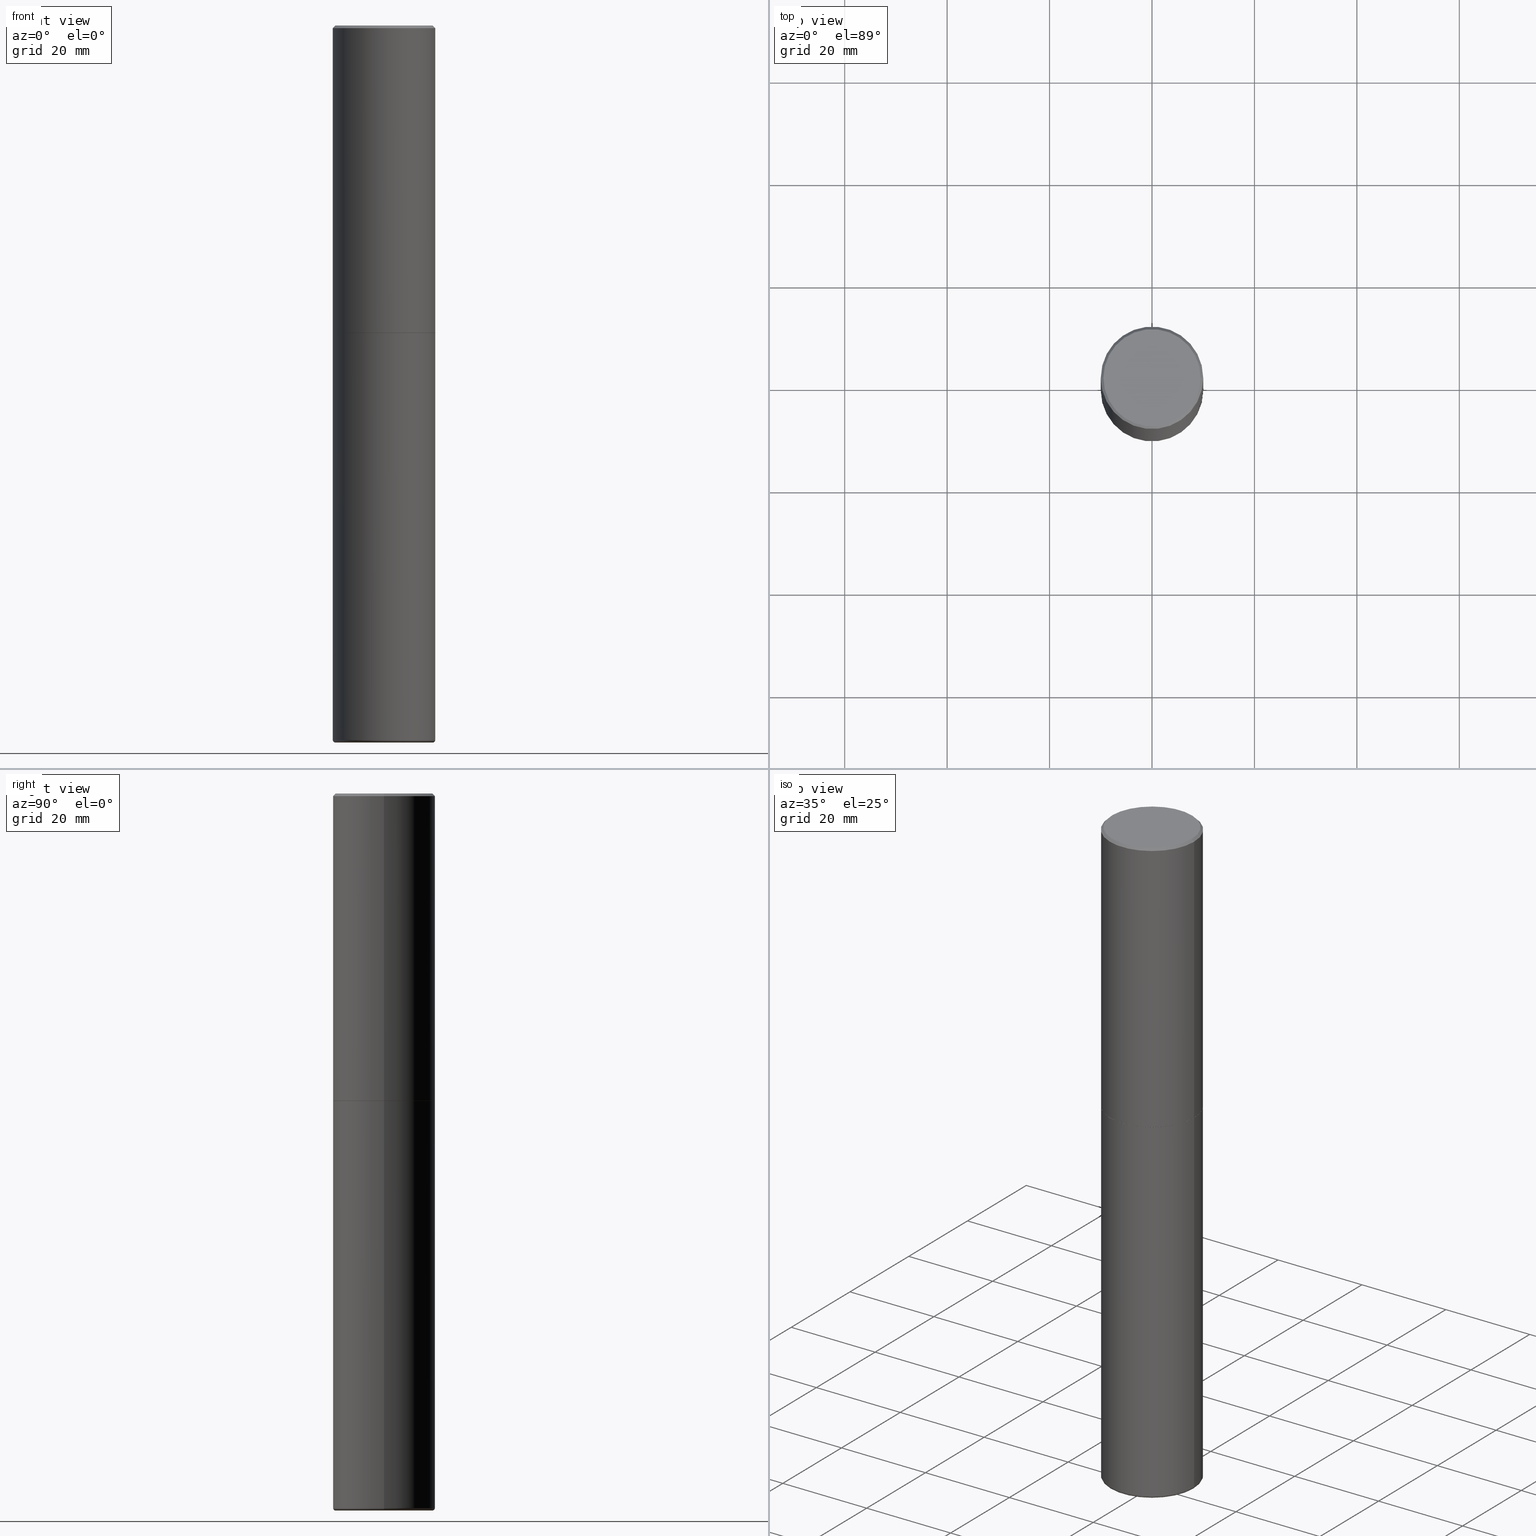
[diagram: canonical four-view strip — front | top / right | iso, engineering-drawing reading convention]
A machine part, canonical four-view strip (front | top / right | iso — engineering-drawing reading convention). The complete STEP part file that produces these views, byte-faithful:
ISO-10303-21;
HEADER;
FILE_DESCRIPTION (( 'STEP AP203' ),
    '1' );
FILE_NAME ('74542.STEP',
    '2024-03-06T15:26:11',
    ( '' ),
    ( '' ),
    'SwSTEP 2.0',
    'SolidWorks 2023',
    '' );
FILE_SCHEMA (( 'CONFIG_CONTROL_DESIGN' ));
ENDSEC;

DATA;
#1 = CARTESIAN_POINT ( 'NONE',  ( -0.3937000000000000499, 2.679362779428219918E-15, -0.02000000000000008715 ) ) ;
#2 = SHAPE_DEFINITION_REPRESENTATION ( #356, #47 ) ;
#3 = CIRCLE ( 'NONE', #96, 0.01969999999999985998 ) ;
#4 = DIRECTION ( 'NONE',  ( 0.7071067811866199593, -2.468850131083015945E-15, 0.7071067811864750752 ) ) ;
#5 = DIRECTION ( 'NONE',  ( -2.445468806185136877E-29, 3.491481338843145188E-15, 1.000000000000000000 ) ) ;
#6 = FACE_OUTER_BOUND ( 'NONE', #371, .T. ) ;
#7 = VECTOR ( 'NONE', #5, 39.37007874015748143 ) ;
#8 = VECTOR ( 'NONE', #125, 39.37007874015748143 ) ;
#9 = EDGE_CURVE ( 'NONE', #236, #379, #342, .T. ) ;
#10 = LINE ( 'NONE', #264, #26 ) ;
#11 = CARTESIAN_POINT ( 'NONE',  ( 5.776686413970529753E-29, -8.247577218615279626E-15, -2.362200000000000077 ) ) ;
#12 = ORIENTED_EDGE ( 'NONE', *, *, #267, .T. ) ;
#13 = CARTESIAN_POINT ( 'NONE',  ( -0.3937000000000000499, -1.091416418915034540E-14, -2.362200000000000077 ) ) ;
#14 = AXIS2_PLACEMENT_3D ( 'NONE', #82, #178, #246 ) ;
#15 = ADVANCED_FACE ( 'NONE', ( #135 ), #41, .T. ) ;
#16 = ORIENTED_EDGE ( 'NONE', *, *, #234, .F. ) ;
#17 = CARTESIAN_POINT ( 'NONE',  ( 1.343075923044938861E-28, -1.917556466106043760E-14, -5.492099999999999760 ) ) ;
#18 = ORIENTED_EDGE ( 'NONE', *, *, #60, .F. ) ;
#19 = APPROVAL_STATUS ( 'not_yet_approved' ) ;
#20 = CARTESIAN_POINT ( 'NONE',  ( 5.776686413970529753E-29, -8.247577218615279626E-15, -2.362200000000000077 ) ) ;
#21 = CARTESIAN_POINT ( 'NONE',  ( 5.776686413970529753E-29, -8.247577218615279626E-15, -2.362200000000000077 ) ) ;
#22 = EDGE_CURVE ( 'NONE', #44, #73, #285, .T. ) ;
#23 = COORDINATED_UNIVERSAL_TIME_OFFSET ( 5, 0, .BEHIND. ) ;
#24 = SECURITY_CLASSIFICATION_LEVEL ( 'unclassified' ) ;
#25 = APPROVAL ( #54, 'UNSPECIFIED' ) ;
#26 = VECTOR ( 'NONE', #105, 39.37007874015748143 ) ;
#27 = EDGE_CURVE ( 'NONE', #312, #174, #302, .T. ) ;
#28 = DIRECTION ( 'NONE',  ( -1.000000000000000000, 6.982962677686265922E-15, 0.000000000000000000 ) ) ;
#29 = AXIS2_PLACEMENT_3D ( 'NONE', #93, #368, #139 ) ;
#30 = DIRECTION ( 'NONE',  ( -2.445468806185136877E-29, 3.491481338843145188E-15, 1.000000000000000000 ) ) ;
#31 = PERSON ( 'UNSPECIFIED', 'UNSPECIFIED', 'UNSPECIFIED', ('UNSPECIFIED'), ('UNSPECIFIED'), ('UNSPECIFIED') ) ;
#32 = LENGTH_MEASURE_WITH_UNIT ( LENGTH_MEASURE( 0.02539999999999999897 ), #405 );
#33 = PERSON_AND_ORGANIZATION ( #31, #133 ) ;
#34 = CARTESIAN_POINT ( 'NONE',  ( 0.3937000000000001609, -2.749192406205084400E-15, 1.919750796630860732E-29 ) ) ;
#35 = ORIENTED_EDGE ( 'NONE', *, *, #335, .T. ) ;
#36 = DIMENSIONAL_EXPONENTS ( 1.000000000000000000, 0.000000000000000000, 0.000000000000000000, 0.000000000000000000, 0.000000000000000000, 0.000000000000000000, 0.000000000000000000 ) ;
#37 = EDGE_LOOP ( 'NONE', ( #186, #239, #235, #301 ) ) ;
#38 = DIRECTION ( 'NONE',  ( 0.7071067811865450192, -7.319954787623246579E-15, -0.7071067811865500152 ) ) ;
#39 = EDGE_CURVE ( 'NONE', #64, #79, #3, .T. ) ;
#40 = PLANE ( 'NONE',  #136 ) ;
#41 = TOROIDAL_SURFACE ( 'NONE', #127, 0.3739999999999999991, 0.01969999999999985998 ) ;
#42 = AXIS2_PLACEMENT_3D ( 'NONE', #204, #334, #398 ) ;
#43 = CALENDAR_DATE ( 2024, 6, 3 ) ;
#44 = VERTEX_POINT ( 'NONE', #165 ) ;
#45 = DIRECTION ( 'NONE',  ( 1.000000000000000000, -6.982962677686269866E-15, 0.000000000000000000 ) ) ;
#46 = VERTEX_POINT ( 'NONE', #266 ) ;
#47 = ADVANCED_BREP_SHAPE_REPRESENTATION ( '74542', ( #55, #353, #122 ), #250 ) ;
#48 = PERSON_AND_ORGANIZATION ( #31, #133 ) ;
#49 = CC_DESIGN_PERSON_AND_ORGANIZATION_ASSIGNMENT ( #63, #339, ( #393 ) ) ;
#50 = AXIS2_PLACEMENT_3D ( 'NONE', #53, #190, #28 ) ;
#51 = CARTESIAN_POINT ( 'NONE',  ( 0.000000000000000000, 0.000000000000000000, 0.000000000000000000 ) ) ;
#52 = AXIS2_PLACEMENT_3D ( 'NONE', #391, #86, #394 ) ;
#53 = CARTESIAN_POINT ( 'NONE',  ( 4.890937612370294178E-31, -6.982962677686321191E-17, -0.02000000000000008715 ) ) ;
#54 = APPROVAL_STATUS ( 'not_yet_approved' ) ;
#55 = MANIFOLD_SOLID_BREP ( 'Body-Move/Copy2[1]', #390 ) ;
#56 = PLANE ( 'NONE',  #152 ) ;
#57 = AXIS2_PLACEMENT_3D ( 'NONE', #78, #344, #45 ) ;
#58 = DIRECTION ( 'NONE',  ( -2.445468806185136597E-29, 3.491481338843145583E-15, 1.000000000000000000 ) ) ;
#59 = DIRECTION ( 'NONE',  ( -1.000000000000000000, 6.982962677686265922E-15, -4.876176775795935793E-29 ) ) ;
#60 = EDGE_CURVE ( 'NONE', #272, #321, #10, .T. ) ;
#61 = DIRECTION ( 'NONE',  ( -6.982962677686266711E-15, -1.000000000000000000, 3.491481338843145583E-15 ) ) ;
#62 = DIRECTION ( 'NONE',  ( -1.000000000000000000, 7.105427357600978193E-15, 0.000000000000000000 ) ) ;
#63 = PERSON_AND_ORGANIZATION ( #31, #133 ) ;
#64 = VERTEX_POINT ( 'NONE', #228 ) ;
#65 = VERTEX_POINT ( 'NONE', #171 ) ;
#66 = DIRECTION ( 'NONE',  ( 2.438088387897960049E-29, -3.491481338843145188E-15, -1.000000000000000000 ) ) ;
#67 = CC_DESIGN_DATE_AND_TIME_ASSIGNMENT ( #144, #274, ( #262 ) ) ;
#68 = DIRECTION ( 'NONE',  ( -2.445468806185136597E-29, 3.491481338843145583E-15, 1.000000000000000000 ) ) ;
#69 = VERTEX_POINT ( 'NONE', #13 ) ;
#70 = ORIENTED_EDGE ( 'NONE', *, *, #118, .F. ) ;
#71 = CARTESIAN_POINT ( 'NONE',  ( 5.776686413970529753E-29, -8.247577218615279626E-15, -2.362200000000000077 ) ) ;
#72 = ORIENTED_EDGE ( 'NONE', *, *, #155, .F. ) ;
#73 = VERTEX_POINT ( 'NONE', #386 ) ;
#74 = AXIS2_PLACEMENT_3D ( 'NONE', #161, #396, #296 ) ;
#75 = PERSON_AND_ORGANIZATION ( #31, #133 ) ;
#76 = AXIS2_PLACEMENT_3D ( 'NONE', #196, #68, #109 ) ;
#77 = ORIENTED_EDGE ( 'NONE', *, *, #227, .F. ) ;
#78 = CARTESIAN_POINT ( 'NONE',  ( 1.343075923044938861E-28, -1.917556466106043760E-14, -5.492099999999999760 ) ) ;
#79 = VERTEX_POINT ( 'NONE', #117 ) ;
#80 = APPROVAL ( #19, 'UNSPECIFIED' ) ;
#81 = FACE_OUTER_BOUND ( 'NONE', #314, .T. ) ;
#82 = CARTESIAN_POINT ( 'NONE',  ( 5.776686413970529753E-29, -8.247577218615279626E-15, -2.362200000000000077 ) ) ;
#83 = ORIENTED_EDGE ( 'NONE', *, *, #177, .T. ) ;
#84 = LOCAL_TIME ( 10, 26, 11.00000000000000000, #197 ) ;
#85 = CONICAL_SURFACE ( 'NONE', #332, 0.3926999999999999935, 0.7853981633975507526 ) ;
#86 = DIRECTION ( 'NONE',  ( -2.445468806185136597E-29, 3.491481338843145583E-15, 1.000000000000000000 ) ) ;
#87 = EDGE_CURVE ( 'NONE', #73, #44, #407, .T. ) ;
#88 = DIRECTION ( 'NONE',  ( 1.000000000000000000, -6.982962677686265922E-15, 0.000000000000000000 ) ) ;
#89 = DIRECTION ( 'NONE',  ( 1.000000000000000000, -6.982962677686266711E-15, 4.876176775795935793E-29 ) ) ;
#90 = FACE_OUTER_BOUND ( 'NONE', #37, .T. ) ;
#91 = DIRECTION ( 'NONE',  ( 1.000000000000000000, -6.982962677686179936E-15, 0.000000000000000000 ) ) ;
#92 = CARTESIAN_POINT ( 'NONE',  ( 5.428027354543142984E-45, -7.749784485978325769E-31, -2.219626494852213988E-16 ) ) ;
#93 = CARTESIAN_POINT ( 'NONE',  ( 5.776686413970529753E-29, -8.247577218615279626E-15, -2.362200000000000077 ) ) ;
#94 = CIRCLE ( 'NONE', #362, 0.3937000000000000499 ) ;
#95 = FACE_OUTER_BOUND ( 'NONE', #303, .T. ) ;
#96 = AXIS2_PLACEMENT_3D ( 'NONE', #225, #404, #62 ) ;
#97 = DIRECTION ( 'NONE',  ( -2.445468806185136597E-29, 3.491481338843145583E-15, 1.000000000000000000 ) ) ;
#98 = CC_DESIGN_DATE_AND_TIME_ASSIGNMENT ( #126, #226, ( #308 ) ) ;
#99 = CARTESIAN_POINT ( 'NONE',  ( 1.343075923044938861E-28, -1.917556466106043760E-14, -5.492099999999999760 ) ) ;
#100 = APPROVAL_PERSON_ORGANIZATION ( #300, #291, #306 ) ;
#101 = APPLICATION_PROTOCOL_DEFINITION ( 'international standard', 'config_control_design', 1994, #361 ) ;
#102 = DATE_AND_TIME ( #219, #116 ) ;
#103 = DIRECTION ( 'NONE',  ( -2.445468806185136597E-29, 3.491481338843145583E-15, 1.000000000000000000 ) ) ;
#104 = ORIENTED_EDGE ( 'NONE', *, *, #395, .F. ) ;
#105 = DIRECTION ( 'NONE',  ( -2.445468806185136877E-29, 3.491481338843145188E-15, 1.000000000000000000 ) ) ;
#106 = ORIENTED_EDGE ( 'NONE', *, *, #87, .T. ) ;
#107 = ADVANCED_FACE ( 'NONE', ( #81 ), #354, .T. ) ;
#108 = ORIENTED_EDGE ( 'NONE', *, *, #281, .F. ) ;
#109 = DIRECTION ( 'NONE',  ( 1.000000000000000000, -6.982962677686265922E-15, 0.000000000000000000 ) ) ;
#110 = DIRECTION ( 'NONE',  ( 1.000000000000000000, -6.982962677686265133E-15, 0.000000000000000000 ) ) ;
#111 = ORIENTED_EDGE ( 'NONE', *, *, #118, .T. ) ;
#112 = PERSON_AND_ORGANIZATION_ROLE ( 'creator' ) ;
#113 = ORIENTED_EDGE ( 'NONE', *, *, #317, .T. ) ;
#114 = ORIENTED_EDGE ( 'NONE', *, *, #39, .T. ) ;
#115 = CIRCLE ( 'NONE', #52, 0.3739999999999999991 ) ;
#116 = LOCAL_TIME ( 10, 26, 11.00000000000000000, #255 ) ;
#117 = CARTESIAN_POINT ( 'NONE',  ( -0.3936999999999999389, -1.637815791037292360E-14, -5.492099999999999760 ) ) ;
#118 = EDGE_CURVE ( 'NONE', #69, #321, #268, .T. ) ;
#119 = CARTESIAN_POINT ( 'NONE',  ( 0.000000000000000000, 0.000000000000000000, 0.000000000000000000 ) ) ;
#120 = APPROVAL_DATE_TIME ( #288, #80 ) ;
#121 = CIRCLE ( 'NONE', #249, 0.3739999999999999991 ) ;
#122 = AXIS2_PLACEMENT_3D ( 'NONE', #257, #377, #298 ) ;
#123 = CYLINDRICAL_SURFACE ( 'NONE', #299, 0.3937000000000001609 ) ;
#124 = PERSON_AND_ORGANIZATION_ROLE ( 'classification_officer' ) ;
#125 = DIRECTION ( 'NONE',  ( -0.7071067811865450192, 2.468850131082230634E-15, -0.7071067811865500152 ) ) ;
#126 = DATE_AND_TIME ( #329, #84 ) ;
#127 = AXIS2_PLACEMENT_3D ( 'NONE', #99, #169, #304 ) ;
#128 = DIRECTION ( 'NONE',  ( 1.000000000000000000, -6.982962677686270655E-15, 4.883557194083114022E-29 ) ) ;
#129 = CARTESIAN_POINT ( 'NONE',  ( 2.609533152651359776E-15, 0.3737000000000003097, -1.415747901068295320E-15 ) ) ;
#130 = EDGE_CURVE ( 'NONE', #64, #65, #121, .T. ) ;
#131 = CARTESIAN_POINT ( 'NONE',  ( 1.347893496593123646E-28, -1.924434684343564878E-14, -5.511800000000000033 ) ) ;
#132 = DIRECTION ( 'NONE',  ( -2.445468806185136597E-29, 3.491481338843145583E-15, 1.000000000000000000 ) ) ;
#133 = ORGANIZATION ( 'UNSPECIFIED', 'UNSPECIFIED', '' ) ;
#134 = AXIS2_PLACEMENT_3D ( 'NONE', #20, #146, #182 ) ;
#135 = FACE_OUTER_BOUND ( 'NONE', #343, .T. ) ;
#136 = AXIS2_PLACEMENT_3D ( 'NONE', #21, #148, #311 ) ;
#137 = APPROVAL_STATUS ( 'not_yet_approved' ) ;
#138 = ORIENTED_EDGE ( 'NONE', *, *, #349, .T. ) ;
#139 = DIRECTION ( 'NONE',  ( 1.000000000000000000, -6.982962677686265922E-15, 4.876176775795935793E-29 ) ) ;
#140 = ORIENTED_EDGE ( 'NONE', *, *, #349, .F. ) ;
#141 = CIRCLE ( 'NONE', #76, 0.3937000000000002720 ) ;
#142 = CARTESIAN_POINT ( 'NONE',  ( 5.428027354543142984E-45, -7.749784485978325769E-31, -2.219626494852213988E-16 ) ) ;
#143 = ORIENTED_EDGE ( 'NONE', *, *, #187, .T. ) ;
#144 = DATE_AND_TIME ( #43, #222 ) ;
#145 = EDGE_CURVE ( 'NONE', #321, #69, #326, .T. ) ;
#146 = DIRECTION ( 'NONE',  ( -2.445468806185136597E-29, 3.491481338843145583E-15, 1.000000000000000000 ) ) ;
#147 = ORIENTED_EDGE ( 'NONE', *, *, #283, .T. ) ;
#148 = DIRECTION ( 'NONE',  ( 2.438088387897960049E-29, -3.491481338843145188E-15, -1.000000000000000000 ) ) ;
#149 = APPROVAL_PERSON_ORGANIZATION ( #33, #25, #402 ) ;
#150 = DIRECTION ( 'NONE',  ( -2.445468806185136597E-29, 3.491481338843145583E-15, 1.000000000000000000 ) ) ;
#151 = DIRECTION ( 'NONE',  ( -2.445468806185136597E-29, 3.491481338843145583E-15, 1.000000000000000000 ) ) ;
#152 = AXIS2_PLACEMENT_3D ( 'NONE', #131, #224, #59 ) ;
#153 = CC_DESIGN_APPROVAL ( #291, ( #262 ) ) ;
#154 = FACE_OUTER_BOUND ( 'NONE', #406, .T. ) ;
#155 = EDGE_CURVE ( 'NONE', #272, #79, #384, .T. ) ;
#156 = CARTESIAN_POINT ( 'NONE',  ( 4.890937612370294178E-31, -6.982962677686321191E-17, -0.02000000000000008715 ) ) ;
#157 = LINE ( 'NONE', #206, #209 ) ;
#158 = ADVANCED_FACE ( 'NONE', ( #322 ), #40, .F. ) ;
#159 = CARTESIAN_POINT ( 'NONE',  ( 0.3737000000000003097, -2.667287895133369937E-15, -2.219626494852029345E-16 ) ) ;
#160 = CARTESIAN_POINT ( 'NONE',  ( -0.3937000000000000499, 2.679362779428219918E-15, -0.02000000000000008715 ) ) ;
#161 = CARTESIAN_POINT ( 'NONE',  ( 4.890937612370294178E-31, -6.982962677686321191E-17, -0.02000000000000008715 ) ) ;
#162 = ORIENTED_EDGE ( 'NONE', *, *, #267, .F. ) ;
#163 = CARTESIAN_POINT ( 'NONE',  ( -0.3936999999999999389, 2.797406750687513998E-15, -1.936584745033356455E-29 ) ) ;
#164 = VECTOR ( 'NONE', #30, 39.37007874015748143 ) ;
#165 = CARTESIAN_POINT ( 'NONE',  ( -0.3926999999999999935, -5.451977440937141868E-15, -2.362200000000000077 ) ) ;
#166 = APPLICATION_PROTOCOL_DEFINITION ( 'international standard', 'config_control_design', 1994, #389 ) ;
#167 = EDGE_LOOP ( 'NONE', ( #351, #229, #181, #408 ) ) ;
#168 = CC_DESIGN_PERSON_AND_ORGANIZATION_ASSIGNMENT ( #284, #217, ( #245 ) ) ;
#169 = DIRECTION ( 'NONE',  ( -2.445468806185136597E-29, 3.491481338843145583E-15, 1.000000000000000000 ) ) ;
#170 =( CONVERSION_BASED_UNIT ( 'INCH', #32 ) LENGTH_UNIT ( ) NAMED_UNIT ( #36 ) );
#171 = CARTESIAN_POINT ( 'NONE',  ( 0.3739999999999999991, -2.185597488489031278E-14, -5.511800000000000033 ) ) ;
#172 = ORIENTED_EDGE ( 'NONE', *, *, #130, .F. ) ;
#173 = CIRCLE ( 'NONE', #261, 0.3737000000000003097 ) ;
#174 = VERTEX_POINT ( 'NONE', #210 ) ;
#175 = DATE_AND_TIME ( #382, #346 ) ;
#176 = AXIS2_PLACEMENT_3D ( 'NONE', #51, #289, #330 ) ;
#177 = EDGE_CURVE ( 'NONE', #79, #272, #218, .T. ) ;
#178 = DIRECTION ( 'NONE',  ( -2.445468806185136597E-29, 3.491481338843145583E-15, 1.000000000000000000 ) ) ;
#179 = ORIENTED_EDGE ( 'NONE', *, *, #355, .F. ) ;
#180 = PERSON_AND_ORGANIZATION ( #31, #133 ) ;
#181 = ORIENTED_EDGE ( 'NONE', *, *, #214, .T. ) ;
#182 = DIRECTION ( 'NONE',  ( 1.000000000000000000, -6.982962677686267499E-15, 0.000000000000000000 ) ) ;
#183 = VECTOR ( 'NONE', #38, 39.37007874015748143 ) ;
#184 = ADVANCED_FACE ( 'NONE', ( #213 ), #366, .T. ) ;
#185 = VECTOR ( 'NONE', #4, 39.37007874015748143 ) ;
#186 = ORIENTED_EDGE ( 'NONE', *, *, #234, .T. ) ;
#187 = EDGE_CURVE ( 'NONE', #312, #46, #270, .T. ) ;
#188 = CC_DESIGN_APPROVAL ( #80, ( #245 ) ) ;
#189 = DIRECTION ( 'NONE',  ( -2.445468806185136597E-29, 3.491481338843145583E-15, 1.000000000000000000 ) ) ;
#190 = DIRECTION ( 'NONE',  ( 2.445468806185136597E-29, -3.491481338843145583E-15, -1.000000000000000000 ) ) ;
#191 = ADVANCED_FACE ( 'NONE', ( #154 ), #253, .T. ) ;
#192 = AXIS2_PLACEMENT_3D ( 'NONE', #215, #151, #388 ) ;
#193 = AXIS2_PLACEMENT_3D ( 'NONE', #129, #66, #200 ) ;
#194 = LINE ( 'NONE', #333, #185 ) ;
#195 = DIRECTION ( 'NONE',  ( 1.000000000000000000, -6.982962677686265922E-15, 0.000000000000000000 ) ) ;
#196 = CARTESIAN_POINT ( 'NONE',  ( 5.774240945164344150E-29, -8.244085737276435042E-15, -2.361199999999999743 ) ) ;
#197 = COORDINATED_UNIVERSAL_TIME_OFFSET ( 5, 0, .BEHIND. ) ;
#198 = CARTESIAN_POINT ( 'NONE',  ( 0.3936999999999999389, -2.192475706726552397E-14, -5.492099999999999760 ) ) ;
#199 = ORIENTED_EDGE ( 'NONE', *, *, #208, .T. ) ;
#200 = DIRECTION ( 'NONE',  ( -1.000000000000000000, 6.982962677686265922E-15, -4.876176775795935793E-29 ) ) ;
#201 = CC_DESIGN_APPROVAL ( #25, ( #308 ) ) ;
#202 = EDGE_LOOP ( 'NONE', ( #237, #111 ) ) ;
#203 = ORIENTED_EDGE ( 'NONE', *, *, #39, .F. ) ;
#204 = CARTESIAN_POINT ( 'NONE',  ( 0.000000000000000000, 0.000000000000000000, 0.000000000000000000 ) ) ;
#205 = ADVANCED_FACE ( 'NONE', ( #90 ), #123, .T. ) ;
#206 = CARTESIAN_POINT ( 'NONE',  ( -0.3926999999999999935, -5.457275895285365059E-15, -2.362200000000000077 ) ) ;
#207 = EDGE_LOOP ( 'NONE', ( #140, #242, #352, #104 ) ) ;
#208 = EDGE_CURVE ( 'NONE', #46, #379, #415, .T. ) ;
#209 = VECTOR ( 'NONE', #232, 39.37007874015748143 ) ;
#210 = CARTESIAN_POINT ( 'NONE',  ( 0.3937000000000000499, -2.770807688499515734E-15, -0.02000000000000008715 ) ) ;
#211 = ORIENTED_EDGE ( 'NONE', *, *, #227, .T. ) ;
#212 = AXIS2_PLACEMENT_3D ( 'NONE', #319, #150, #280 ) ;
#213 = FACE_OUTER_BOUND ( 'NONE', #207, .T. ) ;
#214 = EDGE_CURVE ( 'NONE', #174, #379, #310, .T. ) ;
#215 = CARTESIAN_POINT ( 'NONE',  ( 0.000000000000000000, 0.000000000000000000, 0.000000000000000000 ) ) ;
#216 = AXIS2_PLACEMENT_3D ( 'NONE', #71, #238, #347 ) ;
#217 = PERSON_AND_ORGANIZATION_ROLE ( 'creator' ) ;
#218 = CIRCLE ( 'NONE', #414, 0.3936999999999999389 ) ;
#219 = CALENDAR_DATE ( 2024, 6, 3 ) ;
#220 = FACE_OUTER_BOUND ( 'NONE', #350, .T. ) ;
#221 = FACE_OUTER_BOUND ( 'NONE', #233, .T. ) ;
#222 = LOCAL_TIME ( 10, 26, 11.00000000000000000, #240 ) ;
#223 = CIRCLE ( 'NONE', #403, 0.3937000000000002720 ) ;
#224 = DIRECTION ( 'NONE',  ( 2.438088387897960049E-29, -3.491481338843145188E-15, -1.000000000000000000 ) ) ;
#225 = CARTESIAN_POINT ( 'NONE',  ( -0.3739999999999999991, -1.651813482931766527E-14, -5.492099999999999760 ) ) ;
#226 = DATE_TIME_ROLE ( 'classification_date' ) ;
#227 = EDGE_CURVE ( 'NONE', #65, #64, #115, .T. ) ;
#228 = CARTESIAN_POINT ( 'NONE',  ( -0.3739999999999999991, -1.648253746103290003E-14, -5.511800000000000033 ) ) ;
#229 = ORIENTED_EDGE ( 'NONE', *, *, #27, .T. ) ;
#230 = FACE_OUTER_BOUND ( 'NONE', #318, .T. ) ;
#231 = ORIENTED_EDGE ( 'NONE', *, *, #317, .F. ) ;
#232 = DIRECTION ( 'NONE',  ( -0.7071067811866199593, 7.493145998870616062E-15, 0.7071067811864750752 ) ) ;
#233 = EDGE_LOOP ( 'NONE', ( #113, #143 ) ) ;
#234 = EDGE_CURVE ( 'NONE', #305, #236, #223, .T. ) ;
#235 = ORIENTED_EDGE ( 'NONE', *, *, #214, .F. ) ;
#236 = VERTEX_POINT ( 'NONE', #392 ) ;
#237 = ORIENTED_EDGE ( 'NONE', *, *, #145, .T. ) ;
#238 = DIRECTION ( 'NONE',  ( -2.445468806185136597E-29, 3.491481338843145583E-15, 1.000000000000000000 ) ) ;
#239 = ORIENTED_EDGE ( 'NONE', *, *, #9, .T. ) ;
#240 = COORDINATED_UNIVERSAL_TIME_OFFSET ( 5, 0, .BEHIND. ) ;
#241 = AXIS2_PLACEMENT_3D ( 'NONE', #287, #248, #254 ) ;
#242 = ORIENTED_EDGE ( 'NONE', *, *, #22, .T. ) ;
#243 = ORIENTED_EDGE ( 'NONE', *, *, #145, .F. ) ;
#244 = COORDINATED_UNIVERSAL_TIME_OFFSET ( 5, 0, .BEHIND. ) ;
#245 = PRODUCT_DEFINITION_FORMATION_WITH_SPECIFIED_SOURCE ( 'ANY', '', #393, .NOT_KNOWN. ) ;
#246 = DIRECTION ( 'NONE',  ( 1.000000000000000000, -6.982962677686267499E-15, 0.000000000000000000 ) ) ;
#247 = ADVANCED_FACE ( 'NONE', ( #6 ), #416, .T. ) ;
#248 = DIRECTION ( 'NONE',  ( -2.445468806185136597E-29, 3.491481338843145583E-15, 1.000000000000000000 ) ) ;
#249 = AXIS2_PLACEMENT_3D ( 'NONE', #315, #282, #275 ) ;
#250 =( GEOMETRIC_REPRESENTATION_CONTEXT ( 3 ) GLOBAL_UNCERTAINTY_ASSIGNED_CONTEXT ( ( #307 ) ) GLOBAL_UNIT_ASSIGNED_CONTEXT ( ( #170, #293, #401 ) ) REPRESENTATION_CONTEXT ( 'NONE', 'WORKASPACE' ) );
#251 = DIRECTION ( 'NONE',  ( -2.445468806185136597E-29, 3.491481338843145583E-15, 1.000000000000000000 ) ) ;
#252 = CC_DESIGN_PERSON_AND_ORGANIZATION_ASSIGNMENT ( #48, #325, ( #245 ) ) ;
#253 = CYLINDRICAL_SURFACE ( 'NONE', #176, 0.3937000000000001609 ) ;
#254 = DIRECTION ( 'NONE',  ( 1.000000000000000000, -6.982962677686265922E-15, 0.000000000000000000 ) ) ;
#255 = COORDINATED_UNIVERSAL_TIME_OFFSET ( 5, 0, .BEHIND. ) ;
#256 = DIRECTION ( 'NONE',  ( 1.000000000000000000, -6.982962677686266711E-15, 4.877734241229871763E-29 ) ) ;
#257 = CARTESIAN_POINT ( 'NONE',  ( 0.000000000000000000, 0.000000000000000000, 0.000000000000000000 ) ) ;
#258 = ADVANCED_FACE ( 'NONE', ( #95 ), #56, .T. ) ;
#259 = LINE ( 'NONE', #163, #7 ) ;
#260 = CC_DESIGN_SECURITY_CLASSIFICATION ( #308, ( #245 ) ) ;
#261 = AXIS2_PLACEMENT_3D ( 'NONE', #92, #367, #256 ) ;
#262 = PRODUCT_DEFINITION ( 'UNKNOWN', '', #245, #359 ) ;
#263 = MECHANICAL_CONTEXT ( 'NONE', #361, 'mechanical' ) ;
#264 = CARTESIAN_POINT ( 'NONE',  ( 0.3936999999999999389, -2.749192406205082822E-15, 1.919750796630859611E-29 ) ) ;
#265 = PLANE ( 'NONE',  #29 ) ;
#266 = CARTESIAN_POINT ( 'NONE',  ( -0.3737000000000003097, 2.644447966039789847E-15, -2.219626494852397645E-16 ) ) ;
#267 = EDGE_CURVE ( 'NONE', #65, #272, #345, .T. ) ;
#268 = CIRCLE ( 'NONE', #14, 0.3937000000000000499 ) ;
#269 = EDGE_LOOP ( 'NONE', ( #179, #83, #309, #70 ) ) ;
#270 = CIRCLE ( 'NONE', #278, 0.3737000000000003097 ) ;
#271 = DIRECTION ( 'NONE',  ( -2.445468806185136877E-29, 3.491481338843145188E-15, 1.000000000000000000 ) ) ;
#272 = VERTEX_POINT ( 'NONE', #198 ) ;
#273 = ORIENTED_EDGE ( 'NONE', *, *, #177, .F. ) ;
#274 = DATE_TIME_ROLE ( 'creation_date' ) ;
#275 = DIRECTION ( 'NONE',  ( 1.000000000000000000, -6.982962677686265133E-15, 0.000000000000000000 ) ) ;
#276 = ORIENTED_EDGE ( 'NONE', *, *, #27, .F. ) ;
#277 = APPROVAL_ROLE ( '' ) ;
#278 = AXIS2_PLACEMENT_3D ( 'NONE', #142, #381, #324 ) ;
#279 = PRODUCT_RELATED_PRODUCT_CATEGORY ( 'detail', '', ( #393 ) ) ;
#280 = DIRECTION ( 'NONE',  ( 1.000000000000000000, -6.982962677686265133E-15, 0.000000000000000000 ) ) ;
#281 = EDGE_CURVE ( 'NONE', #73, #305, #194, .T. ) ;
#282 = DIRECTION ( 'NONE',  ( -2.445468806185136597E-29, 3.491481338843145583E-15, 1.000000000000000000 ) ) ;
#283 = EDGE_CURVE ( 'NONE', #305, #174, #336, .T. ) ;
#284 = PERSON_AND_ORGANIZATION ( #31, #133 ) ;
#285 = CIRCLE ( 'NONE', #374, 0.3926999999999999935 ) ;
#286 = CONICAL_SURFACE ( 'NONE', #50, 0.3937000000000000499, 0.7853981633974447263 ) ;
#287 = CARTESIAN_POINT ( 'NONE',  ( 4.890937612370294178E-31, -6.982962677686321191E-17, -0.02000000000000008715 ) ) ;
#288 = DATE_AND_TIME ( #290, #385 ) ;
#289 = DIRECTION ( 'NONE',  ( -2.445468806185136597E-29, 3.491481338843145583E-15, 1.000000000000000000 ) ) ;
#290 = CALENDAR_DATE ( 2024, 6, 3 ) ;
#291 = APPROVAL ( #137, 'UNSPECIFIED' ) ;
#292 = CARTESIAN_POINT ( 'NONE',  ( 1.343075923044938861E-28, -1.917556466106043760E-14, -5.492099999999999760 ) ) ;
#293 =( NAMED_UNIT ( * ) PLANE_ANGLE_UNIT ( ) SI_UNIT ( $, .RADIAN. ) );
#294 = CYLINDRICAL_SURFACE ( 'NONE', #42, 0.3936999999999999389 ) ;
#295 = ADVANCED_FACE ( 'NONE', ( #363 ), #85, .T. ) ;
#296 = DIRECTION ( 'NONE',  ( -1.000000000000000000, 6.982962677686265922E-15, 0.000000000000000000 ) ) ;
#297 = CARTESIAN_POINT ( 'NONE',  ( -0.3937000000000001609, 2.797406750687515575E-15, -1.936584745033357296E-29 ) ) ;
#298 = DIRECTION ( 'NONE',  ( 1.000000000000000000, 0.000000000000000000, 0.000000000000000000 ) ) ;
#299 = AXIS2_PLACEMENT_3D ( 'NONE', #119, #189, #89 ) ;
#300 = PERSON_AND_ORGANIZATION ( #31, #133 ) ;
#301 = ORIENTED_EDGE ( 'NONE', *, *, #283, .F. ) ;
#302 = LINE ( 'NONE', #376, #183 ) ;
#303 = EDGE_LOOP ( 'NONE', ( #77, #172 ) ) ;
#304 = DIRECTION ( 'NONE',  ( 1.000000000000000000, -6.982962677686270655E-15, 4.883557194083114022E-29 ) ) ;
#305 = VERTEX_POINT ( 'NONE', #360 ) ;
#306 = APPROVAL_ROLE ( '' ) ;
#307 = UNCERTAINTY_MEASURE_WITH_UNIT (LENGTH_MEASURE( 1.000000000000000082E-05 ), #170, 'distance_accuracy_value', 'NONE');
#308 = SECURITY_CLASSIFICATION ( '', '', #24 ) ;
#309 = ORIENTED_EDGE ( 'NONE', *, *, #60, .T. ) ;
#310 = CIRCLE ( 'NONE', #241, 0.3937000000000000499 ) ;
#311 = DIRECTION ( 'NONE',  ( -1.000000000000000000, 6.982962677686265922E-15, -4.876176775795935793E-29 ) ) ;
#312 = VERTEX_POINT ( 'NONE', #159 ) ;
#313 = APPROVAL_DATE_TIME ( #175, #291 ) ;
#314 = EDGE_LOOP ( 'NONE', ( #380, #316, #243, #18 ) ) ;
#315 = CARTESIAN_POINT ( 'NONE',  ( 1.347893496593123646E-28, -1.924434684343564878E-14, -5.511800000000000033 ) ) ;
#316 = ORIENTED_EDGE ( 'NONE', *, *, #355, .T. ) ;
#317 = EDGE_CURVE ( 'NONE', #46, #312, #173, .T. ) ;
#318 = EDGE_LOOP ( 'NONE', ( #372, #411 ) ) ;
#319 = CARTESIAN_POINT ( 'NONE',  ( 5.776686413970529753E-29, -8.247577218615279626E-15, -2.362200000000000077 ) ) ;
#320 = VECTOR ( 'NONE', #271, 39.37007874015748143 ) ;
#321 = VERTEX_POINT ( 'NONE', #397 ) ;
#322 = FACE_OUTER_BOUND ( 'NONE', #202, .T. ) ;
#323 = ADVANCED_FACE ( 'NONE', ( #331 ), #286, .T. ) ;
#324 = DIRECTION ( 'NONE',  ( 1.000000000000000000, -6.982962677686266711E-15, 4.877734241229871763E-29 ) ) ;
#325 = PERSON_AND_ORGANIZATION_ROLE ( 'design_supplier' ) ;
#326 = CIRCLE ( 'NONE', #134, 0.3937000000000000499 ) ;
#327 = APPROVAL_PERSON_ORGANIZATION ( #180, #80, #277 ) ;
#328 = ADVANCED_FACE ( 'NONE', ( #220 ), #399, .T. ) ;
#329 = CALENDAR_DATE ( 2024, 6, 3 ) ;
#330 = DIRECTION ( 'NONE',  ( 1.000000000000000000, -6.982962677686266711E-15, 4.876176775795935793E-29 ) ) ;
#331 = FACE_OUTER_BOUND ( 'NONE', #167, .T. ) ;
#332 = AXIS2_PLACEMENT_3D ( 'NONE', #400, #97, #337 ) ;
#333 = CARTESIAN_POINT ( 'NONE',  ( 0.3926999999999999935, -1.098978666214267525E-14, -2.362200000000000077 ) ) ;
#334 = DIRECTION ( 'NONE',  ( -2.445468806185136597E-29, 3.491481338843145583E-15, 1.000000000000000000 ) ) ;
#335 = EDGE_CURVE ( 'NONE', #379, #174, #94, .T. ) ;
#336 = LINE ( 'NONE', #34, #164 ) ;
#337 = DIRECTION ( 'NONE',  ( 1.000000000000000000, -6.982962677686265133E-15, 0.000000000000000000 ) ) ;
#338 = APPROVAL_DATE_TIME ( #102, #25 ) ;
#339 = PERSON_AND_ORGANIZATION_ROLE ( 'design_owner' ) ;
#340 = CLOSED_SHELL ( 'NONE', ( #295, #205, #323, #247, #191, #184, #364, #375 ) ) ;
#341 = ORIENTED_EDGE ( 'NONE', *, *, #9, .F. ) ;
#342 = LINE ( 'NONE', #297, #320 ) ;
#343 = EDGE_LOOP ( 'NONE', ( #203, #348, #12, #273 ) ) ;
#344 = DIRECTION ( 'NONE',  ( -2.445468806185136597E-29, 3.491481338843145583E-15, 1.000000000000000000 ) ) ;
#345 = CIRCLE ( 'NONE', #357, 0.01969999999999985998 ) ;
#346 = LOCAL_TIME ( 10, 26, 11.00000000000000000, #23 ) ;
#347 = DIRECTION ( 'NONE',  ( 1.000000000000000000, -6.982962677686265133E-15, 0.000000000000000000 ) ) ;
#348 = ORIENTED_EDGE ( 'NONE', *, *, #130, .T. ) ;
#349 = EDGE_CURVE ( 'NONE', #44, #236, #157, .T. ) ;
#350 = EDGE_LOOP ( 'NONE', ( #211, #114, #72, #162 ) ) ;
#351 = ORIENTED_EDGE ( 'NONE', *, *, #187, .F. ) ;
#352 = ORIENTED_EDGE ( 'NONE', *, *, #281, .T. ) ;
#353 = MANIFOLD_SOLID_BREP ( 'Body-Move/Copy2[2]', #340 ) ;
#354 = CYLINDRICAL_SURFACE ( 'NONE', #192, 0.3936999999999999389 ) ;
#355 = EDGE_CURVE ( 'NONE', #79, #69, #259, .T. ) ;
#356 = PRODUCT_DEFINITION_SHAPE ( 'NONE', 'NONE',  #262 ) ;
#357 = AXIS2_PLACEMENT_3D ( 'NONE', #369, #61, #91 ) ;
#358 = CC_DESIGN_PERSON_AND_ORGANIZATION_ASSIGNMENT ( #417, #124, ( #308 ) ) ;
#359 = DESIGN_CONTEXT ( 'detailed design', #389, 'design' ) ;
#360 = CARTESIAN_POINT ( 'NONE',  ( 0.3937000000000002720, -1.099327814348151984E-14, -2.361199999999999743 ) ) ;
#361 = APPLICATION_CONTEXT ( 'configuration controlled 3d designs of mechanical parts and assemblies' ) ;
#362 = AXIS2_PLACEMENT_3D ( 'NONE', #156, #132, #195 ) ;
#363 = FACE_OUTER_BOUND ( 'NONE', #370, .T. ) ;
#364 = ADVANCED_FACE ( 'NONE', ( #230 ), #265, .F. ) ;
#365 = FACE_OUTER_BOUND ( 'NONE', #269, .T. ) ;
#366 = CONICAL_SURFACE ( 'NONE', #212, 0.3926999999999999935, 0.7853981633975507526 ) ;
#367 = DIRECTION ( 'NONE',  ( -2.445468806185136597E-29, 3.491481338843145583E-15, 1.000000000000000000 ) ) ;
#368 = DIRECTION ( 'NONE',  ( -2.438088387897960049E-29, 3.491481338843145188E-15, 1.000000000000000000 ) ) ;
#369 = CARTESIAN_POINT ( 'NONE',  ( 0.3739999999999999991, -2.178719270251510160E-14, -5.492099999999999760 ) ) ;
#370 = EDGE_LOOP ( 'NONE', ( #106, #138, #16, #108 ) ) ;
#371 = EDGE_LOOP ( 'NONE', ( #276, #231, #199, #35 ) ) ;
#372 = ORIENTED_EDGE ( 'NONE', *, *, #87, .F. ) ;
#373 = PLANE ( 'NONE',  #193 ) ;
#374 = AXIS2_PLACEMENT_3D ( 'NONE', #11, #103, #110 ) ;
#375 = ADVANCED_FACE ( 'NONE', ( #221 ), #373, .F. ) ;
#376 = CARTESIAN_POINT ( 'NONE',  ( 0.3937000000000000499, -2.770807688499515734E-15, -0.02000000000000008715 ) ) ;
#377 = DIRECTION ( 'NONE',  ( 0.000000000000000000, 0.000000000000000000, 1.000000000000000000 ) ) ;
#378 = ORIENTED_EDGE ( 'NONE', *, *, #395, .T. ) ;
#379 = VERTEX_POINT ( 'NONE', #160 ) ;
#380 = ORIENTED_EDGE ( 'NONE', *, *, #155, .T. ) ;
#381 = DIRECTION ( 'NONE',  ( -2.445468806185136597E-29, 3.491481338843145583E-15, 1.000000000000000000 ) ) ;
#382 = CALENDAR_DATE ( 2024, 6, 3 ) ;
#383 = AXIS2_PLACEMENT_3D ( 'NONE', #292, #58, #128 ) ;
#384 = CIRCLE ( 'NONE', #57, 0.3936999999999999389 ) ;
#385 = LOCAL_TIME ( 10, 26, 11.00000000000000000, #244 ) ;
#386 = CARTESIAN_POINT ( 'NONE',  ( 0.3926999999999999935, -1.098978666214267525E-14, -2.362200000000000077 ) ) ;
#387 = DIRECTION ( 'NONE',  ( -2.445468806185136597E-29, 3.491481338843145583E-15, 1.000000000000000000 ) ) ;
#388 = DIRECTION ( 'NONE',  ( 1.000000000000000000, -6.982962677686266711E-15, 4.876176775795935793E-29 ) ) ;
#389 = APPLICATION_CONTEXT ( 'configuration controlled 3d designs of mechanical parts and assemblies' ) ;
#390 = CLOSED_SHELL ( 'NONE', ( #107, #328, #158, #413, #15, #258 ) ) ;
#391 = CARTESIAN_POINT ( 'NONE',  ( 1.347893496593123646E-28, -1.924434684343564878E-14, -5.511800000000000033 ) ) ;
#392 = CARTESIAN_POINT ( 'NONE',  ( -0.3937000000000003830, -1.359550931339130834E-15, -2.361199999999999743 ) ) ;
#393 = PRODUCT ( '74542', '74542', '', ( #263 ) ) ;
#394 = DIRECTION ( 'NONE',  ( 1.000000000000000000, -6.982962677686265133E-15, 0.000000000000000000 ) ) ;
#395 = EDGE_CURVE ( 'NONE', #236, #305, #141, .T. ) ;
#396 = DIRECTION ( 'NONE',  ( 2.445468806185136597E-29, -3.491481338843145583E-15, -1.000000000000000000 ) ) ;
#397 = CARTESIAN_POINT ( 'NONE',  ( 0.3937000000000000499, -1.099676962482036284E-14, -2.362200000000000077 ) ) ;
#398 = DIRECTION ( 'NONE',  ( 1.000000000000000000, -6.982962677686266711E-15, 4.876176775795935793E-29 ) ) ;
#399 = TOROIDAL_SURFACE ( 'NONE', #383, 0.3739999999999999991, 0.01969999999999985998 ) ;
#400 = CARTESIAN_POINT ( 'NONE',  ( 5.776686413970529753E-29, -8.247577218615279626E-15, -2.362200000000000077 ) ) ;
#401 =( NAMED_UNIT ( * ) SI_UNIT ( $, .STERADIAN. ) SOLID_ANGLE_UNIT ( ) );
#402 = APPROVAL_ROLE ( '' ) ;
#403 = AXIS2_PLACEMENT_3D ( 'NONE', #418, #251, #88 ) ;
#404 = DIRECTION ( 'NONE',  ( 7.105427357601001859E-15, 1.000000000000000000, -3.491481338843145583E-15 ) ) ;
#405 =( LENGTH_UNIT ( ) NAMED_UNIT ( * ) SI_UNIT ( $, .METRE. ) );
#406 = EDGE_LOOP ( 'NONE', ( #341, #378, #147, #409 ) ) ;
#407 = CIRCLE ( 'NONE', #216, 0.3926999999999999935 ) ;
#408 = ORIENTED_EDGE ( 'NONE', *, *, #208, .F. ) ;
#409 = ORIENTED_EDGE ( 'NONE', *, *, #335, .F. ) ;
#410 = CC_DESIGN_PERSON_AND_ORGANIZATION_ASSIGNMENT ( #75, #112, ( #262 ) ) ;
#411 = ORIENTED_EDGE ( 'NONE', *, *, #22, .F. ) ;
#412 = DIRECTION ( 'NONE',  ( 1.000000000000000000, -6.982962677686269866E-15, 0.000000000000000000 ) ) ;
#413 = ADVANCED_FACE ( 'NONE', ( #365 ), #294, .T. ) ;
#414 = AXIS2_PLACEMENT_3D ( 'NONE', #17, #387, #412 ) ;
#415 = LINE ( 'NONE', #1, #8 ) ;
#416 = CONICAL_SURFACE ( 'NONE', #74, 0.3937000000000000499, 0.7853981633974447263 ) ;
#417 = PERSON_AND_ORGANIZATION ( #31, #133 ) ;
#418 = CARTESIAN_POINT ( 'NONE',  ( 5.774240945164344150E-29, -8.244085737276435042E-15, -2.361199999999999743 ) ) ;
ENDSEC;
END-ISO-10303-21;
